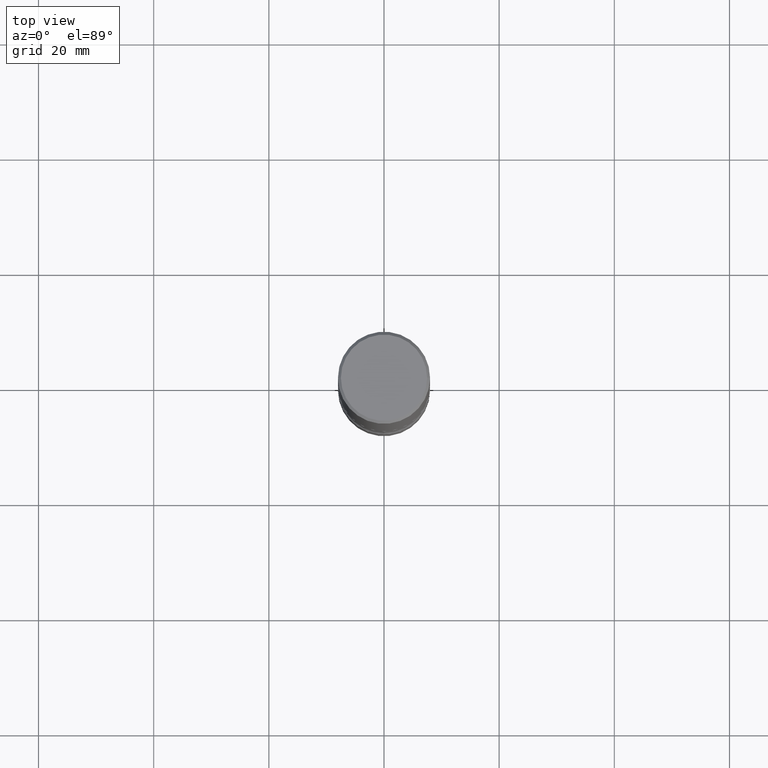
[diagram: clean part render]
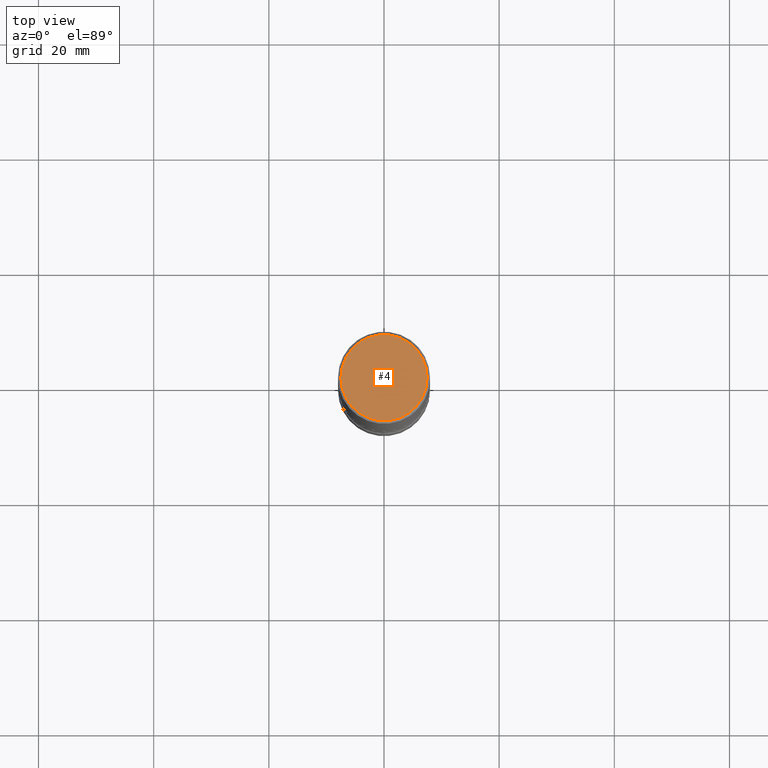
[diagram: same view with one face highlighted and labeled with its STEP entity id]
A machine part, top view. The second image highlights one B-rep face of the part: STEP entity #4.
In plain terms, the highlighted planar face has unit normal (0, -0, -1).
Its self-contained STEP definition (entity closure, byte-faithful):
#4 = ADVANCED_FACE ( 'NONE', ( #23 ), #205, .F. ) ;
#20 = EDGE_LOOP ( 'NONE', ( #521, #120 ) ) ;
#23 = FACE_OUTER_BOUND ( 'NONE', #20, .T. ) ;
#31 = AXIS2_PLACEMENT_3D ( 'NONE', #402, #351, #40 ) ;
#40 = DIRECTION ( 'NONE',  ( 1.000000000000000000, -6.982962677686267499E-15, 4.876053491004737710E-29 ) ) ;
#50 = DIRECTION ( 'NONE',  ( 1.000000000000000000, -6.982962677686267499E-15, 4.876053491004737710E-29 ) ) ;
#72 = VERTEX_POINT ( 'NONE', #427 ) ;
#87 = CIRCLE ( 'NONE', #437, 0.2949499999999998234 ) ;
#91 = DIRECTION ( 'NONE',  ( -2.445468806185136597E-29, 3.491481338843145583E-15, 1.000000000000000000 ) ) ;
#105 = EDGE_CURVE ( 'NONE', #542, #72, #87, .T. ) ;
#120 = ORIENTED_EDGE ( 'NONE', *, *, #162, .T. ) ;
#162 = EDGE_CURVE ( 'NONE', #72, #542, #228, .T. ) ;
#205 = PLANE ( 'NONE',  #395 ) ;
#228 = CIRCLE ( 'NONE', #31, 0.2949499999999998234 ) ;
#299 = DIRECTION ( 'NONE',  ( 2.438088387897960049E-29, -3.491481338843145188E-15, -1.000000000000000000 ) ) ;
#351 = DIRECTION ( 'NONE',  ( -2.445468806185136597E-29, 3.491481338843145583E-15, 1.000000000000000000 ) ) ;
#395 = AXIS2_PLACEMENT_3D ( 'NONE', #555, #299, #474 ) ;
#399 = CARTESIAN_POINT ( 'NONE',  ( -1.043851414335219820E-46, 1.490343170380447200E-32, 4.268512490100411279E-18 ) ) ;
#402 = CARTESIAN_POINT ( 'NONE',  ( -1.043851414335219820E-46, 1.490343170380447200E-32, 4.268512490100411279E-18 ) ) ;
#427 = CARTESIAN_POINT ( 'NONE',  ( 0.2949499999999998234, -2.127023677808859286E-15, 4.268512490115050658E-18 ) ) ;
#437 = AXIS2_PLACEMENT_3D ( 'NONE', #399, #91, #50 ) ;
#474 = DIRECTION ( 'NONE',  ( -1.000000000000000000, 6.982962677686265922E-15, -4.876176775795935793E-29 ) ) ;
#518 = CARTESIAN_POINT ( 'NONE',  ( -0.2949499999999998234, 2.094539655171994135E-15, 4.268512490085885145E-18 ) ) ;
#521 = ORIENTED_EDGE ( 'NONE', *, *, #105, .T. ) ;
#542 = VERTEX_POINT ( 'NONE', #518 ) ;
#555 = CARTESIAN_POINT ( 'NONE',  ( 2.059624841783562880E-15, 0.2949499999999998234, -1.027678164646734974E-15 ) ) ;